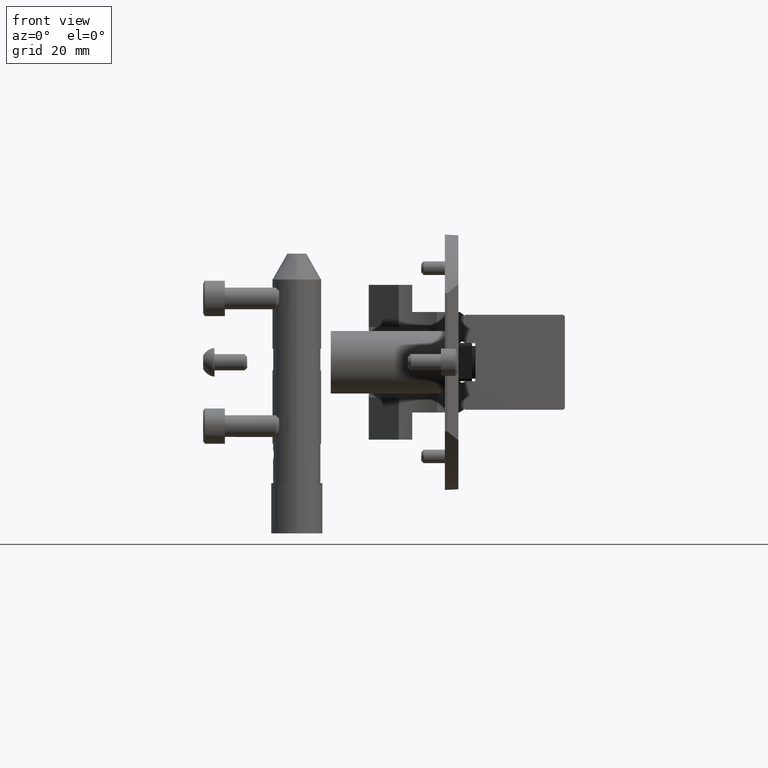
[diagram: clean part render]
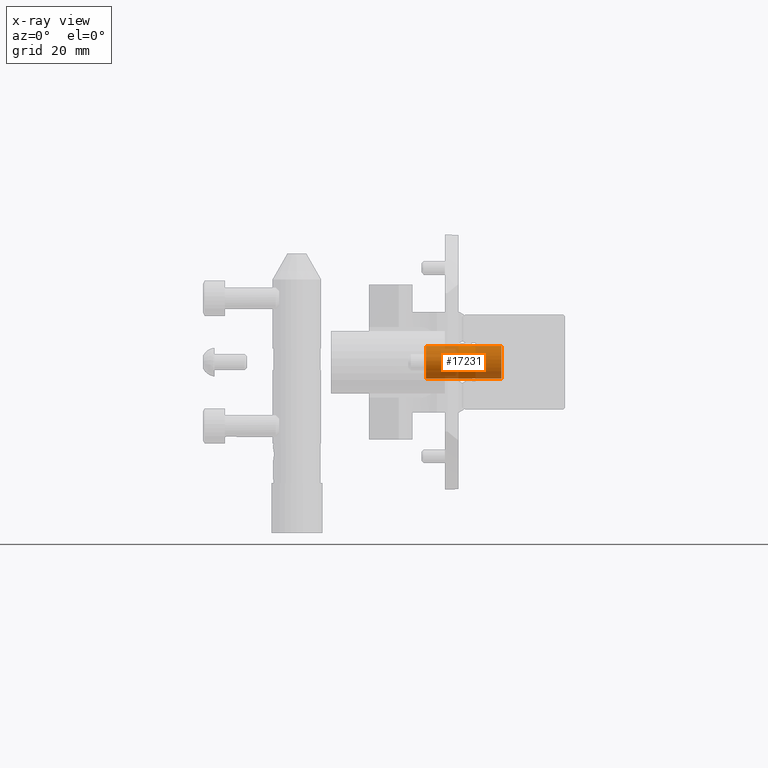
[diagram: x-ray — body ghosted, one internal face saturated and labeled with its STEP entity id]
A machine part, front view, then the same camera in x-ray: the body is ghosted and one INTERNAL B-rep face — a face not visible from any outside direction — is saturated and labeled: STEP entity #17231.
In plain terms, the highlighted cylindrical surface (bore or boss wall) has radius 6 mm, axis along (-1, -0, 0).
Its self-contained STEP definition (entity closure, byte-faithful):
#55=CYLINDRICAL_SURFACE('',#18437,6.);
#6007=ORIENTED_EDGE('',*,*,#10710,.T.);
#6008=ORIENTED_EDGE('',*,*,#10709,.T.);
#10709=EDGE_CURVE('',#13105,#13105,#14704,.T.);
#10710=EDGE_CURVE('',#13106,#13106,#14705,.T.);
#13105=VERTEX_POINT('',#24608);
#13106=VERTEX_POINT('',#24611);
#14704=CIRCLE('',#18436,6.);
#14705=CIRCLE('',#18438,6.);
#15038=EDGE_LOOP('',(#6007));
#15039=EDGE_LOOP('',(#6008));
#16142=FACE_BOUND('',#15038,.T.);
#16143=FACE_BOUND('',#15039,.T.);
#17231=ADVANCED_FACE('',(#16142,#16143),#55,.T.);
#18436=AXIS2_PLACEMENT_3D('',#24607,#20054,#20055);
#18437=AXIS2_PLACEMENT_3D('',#24609,#20056,#20057);
#18438=AXIS2_PLACEMENT_3D('',#24610,#20058,#20059);
#20054=DIRECTION('',(-1.,2.87925409948218E-17,2.75191662579061E-16));
#20055=DIRECTION('',(2.69757398003142E-16,0.322749527365736,0.946484412225153));
#20056=DIRECTION('',(-1.,-1.1214640284326E-17,1.57867947911402E-16));
#20057=DIRECTION('',(-6.15662877924308E-17,0.946484412225153,-0.322749527365736));
#20058=DIRECTION('',(1.,1.1214640284326E-17,-1.57867947911402E-16));
#20059=DIRECTION('',(-6.15662877924308E-17,0.946484412225153,-0.322749527365736));
#24607=CARTESIAN_POINT('',(15.7999,83.5853647671339,-1.03227772361509E-14));
#24608=CARTESIAN_POINT('',(15.7999,85.5218619313283,5.67890647335091));
#24609=CARTESIAN_POINT('',(37.1678447678447,83.5853647671339,-1.36960908277348E-14));
#24610=CARTESIAN_POINT('',(-12.05,83.5853647671339,-5.92617067361319E-15));
#24611=CARTESIAN_POINT('',(-12.05,89.2642712404848,-1.93649716419442));